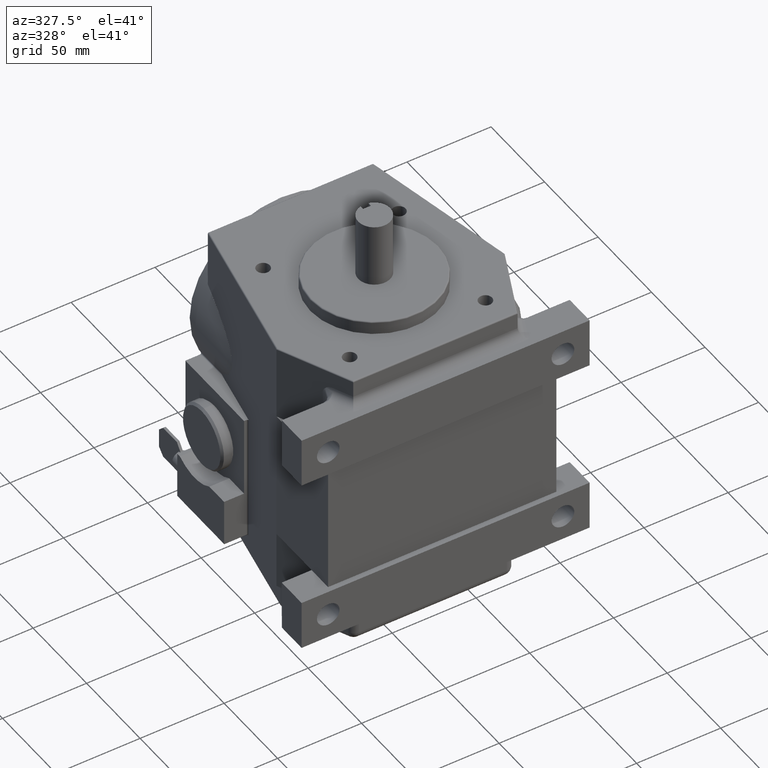
[diagram: clean part render]
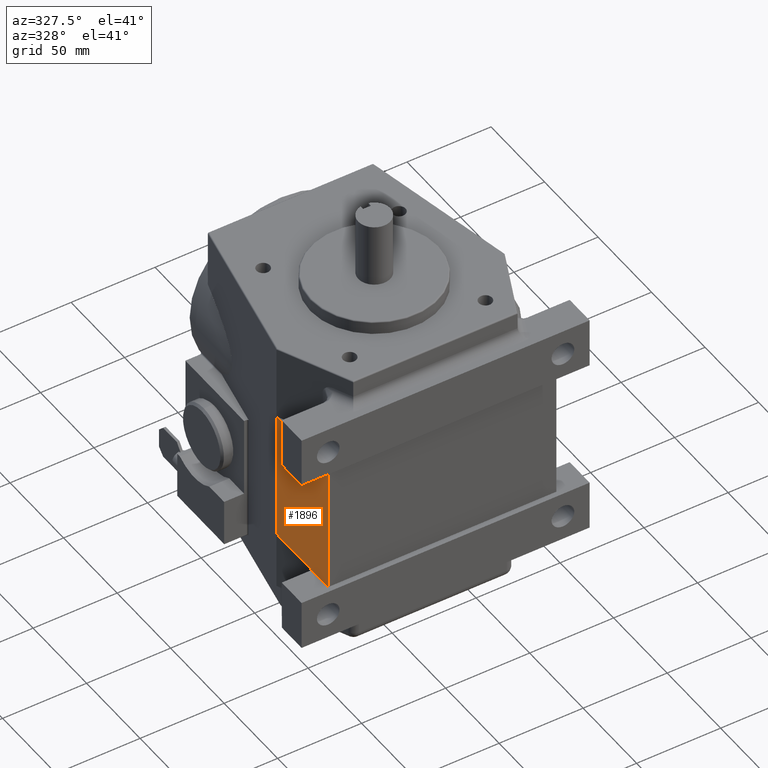
[diagram: same view with one face highlighted and labeled with its STEP entity id]
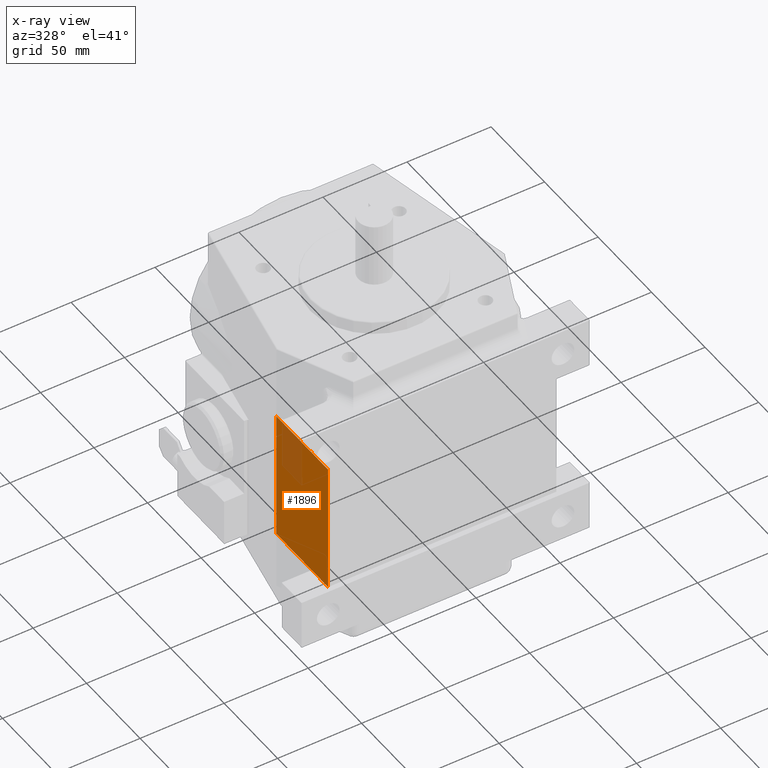
[diagram: x-ray of the same camera — body ghosted, the highlighted face saturated]
A machine part, auxiliary view. The second image highlights one B-rep face of the part: STEP entity #1896.
The next image is the same camera in x-ray: the body ghosted, the highlighted face saturated — about 14% of this face is hidden behind the body in this view.
In plain terms, the highlighted planar face has unit normal (1, 0, -0).
Its self-contained STEP definition (entity closure, byte-faithful):
#220 = VERTEX_POINT ( 'NONE', #1115 ) ;
#239 = VERTEX_POINT ( 'NONE', #1134 ) ;
#240 = VERTEX_POINT ( 'NONE', #1135 ) ;
#264 = VERTEX_POINT ( 'NONE', #1155 ) ;
#271 = VERTEX_POINT ( 'NONE', #1162 ) ;
#272 = VERTEX_POINT ( 'NONE', #1163 ) ;
#277 = VERTEX_POINT ( 'NONE', #1168 ) ;
#278 = VERTEX_POINT ( 'NONE', #1169 ) ;
#289 = VERTEX_POINT ( 'NONE', #1180 ) ;
#294 = VERTEX_POINT ( 'NONE', #1185 ) ;
#588 = EDGE_CURVE ( 'NONE', #239, #240, #4099, .T. ) ;
#612 = EDGE_CURVE ( 'NONE', #289, #294, #4155, .T. ) ;
#621 = EDGE_CURVE ( 'NONE', #278, #277, #4146, .T. ) ;
#633 = EDGE_CURVE ( 'NONE', #272, #271, #4196, .T. ) ;
#647 = EDGE_CURVE ( 'NONE', #271, #277, #4221, .T. ) ;
#662 = EDGE_CURVE ( 'NONE', #289, #272, #4247, .T. ) ;
#663 = EDGE_CURVE ( 'NONE', #264, #239, #4230, .T. ) ;
#664 = EDGE_CURVE ( 'NONE', #220, #264, #4248, .T. ) ;
#666 = EDGE_CURVE ( 'NONE', #278, #240, #4252, .T. ) ;
#667 = EDGE_CURVE ( 'NONE', #220, #294, #4246, .T. ) ;
#1115 = CARTESIAN_POINT ( 'NONE',  ( -2.675000000000000300, 2.025000000000000400, -1.537499999999999600 ) ) ;
#1134 = CARTESIAN_POINT ( 'NONE',  ( -2.674999999999999400, 0.7499999999999997800, 1.537500000000000500 ) ) ;
#1135 = CARTESIAN_POINT ( 'NONE',  ( -2.674999999999999400, 0.7500000000000001100, 1.567500000000000100 ) ) ;
#1155 = CARTESIAN_POINT ( 'NONE',  ( -2.674999999999999400, 2.024999999999999900, 1.537500000000000500 ) ) ;
#1162 = CARTESIAN_POINT ( 'NONE',  ( -2.674999999999999800, 0.1249999999999997900, -1.537499999999999600 ) ) ;
#1163 = CARTESIAN_POINT ( 'NONE',  ( -2.674999999999999800, 0.7200000000000000800, -1.537499999999999600 ) ) ;
#1168 = CARTESIAN_POINT ( 'NONE',  ( -2.674999999999999400, 0.1249999999999997900, 1.537500000000000500 ) ) ;
#1169 = CARTESIAN_POINT ( 'NONE',  ( -2.674999999999999400, 0.7199999999999999700, 1.537500000000000500 ) ) ;
#1180 = CARTESIAN_POINT ( 'NONE',  ( -2.674999999999999800, 0.7500000000000001100, -1.567499999999999700 ) ) ;
#1185 = CARTESIAN_POINT ( 'NONE',  ( -2.674999999999999800, 0.7500000000000001100, -1.537499999999999600 ) ) ;
#1298 = EDGE_LOOP ( 'NONE', ( #2120, #2121, #2122, #2123, #2124, #2125, #2126, #2127, #2128, #2129 ) ) ;
#1896 = ADVANCED_FACE ( 'NONE', ( #5660 ), #6541, .F. ) ;
#2120 = ORIENTED_EDGE ( 'NONE', *, *, #667, .T. ) ;
#2121 = ORIENTED_EDGE ( 'NONE', *, *, #612, .F. ) ;
#2122 = ORIENTED_EDGE ( 'NONE', *, *, #662, .T. ) ;
#2123 = ORIENTED_EDGE ( 'NONE', *, *, #633, .T. ) ;
#2124 = ORIENTED_EDGE ( 'NONE', *, *, #647, .T. ) ;
#2125 = ORIENTED_EDGE ( 'NONE', *, *, #621, .F. ) ;
#2126 = ORIENTED_EDGE ( 'NONE', *, *, #666, .T. ) ;
#2127 = ORIENTED_EDGE ( 'NONE', *, *, #588, .F. ) ;
#2128 = ORIENTED_EDGE ( 'NONE', *, *, #663, .F. ) ;
#2129 = ORIENTED_EDGE ( 'NONE', *, *, #664, .F. ) ;
#4093 = VECTOR ( 'NONE', #5078, 39.37007874015748100 ) ;
#4099 = LINE ( 'NONE', #5077, #4093 ) ;
#4146 = LINE ( 'NONE', #5132, #4173 ) ;
#4155 = LINE ( 'NONE', #5127, #4156 ) ;
#4156 = VECTOR ( 'NONE', #5128, 39.37007874015748100 ) ;
#4173 = VECTOR ( 'NONE', #5129, 39.37007874015748100 ) ;
#4196 = LINE ( 'NONE', #5228, #4197 ) ;
#4197 = VECTOR ( 'NONE', #5229, 39.37007874015748100 ) ;
#4221 = LINE ( 'NONE', #5258, #4222 ) ;
#4222 = VECTOR ( 'NONE', #5259, 39.37007874015748100 ) ;
#4230 = LINE ( 'NONE', #5296, #4244 ) ;
#4244 = VECTOR ( 'NONE', #5297, 39.37007874015748100 ) ;
#4246 = LINE ( 'NONE', #5307, #4250 ) ;
#4247 = CIRCLE ( 'NONE', #4420, 0.02999999999999995400 ) ;
#4248 = LINE ( 'NONE', #5299, #4249 ) ;
#4249 = VECTOR ( 'NONE', #5300, 39.37007874015748100 ) ;
#4250 = VECTOR ( 'NONE', #5308, 39.37007874015748100 ) ;
#4252 = CIRCLE ( 'NONE', #4421, 0.02999999999999995400 ) ;
#4420 = AXIS2_PLACEMENT_3D ( 'NONE', #5289, #5294, #5295 ) ;
#4421 = AXIS2_PLACEMENT_3D ( 'NONE', #5301, #5305, #5306 ) ;
#4466 = AXIS2_PLACEMENT_3D ( 'NONE', #6536, #6546, #6547 ) ;
#5077 = CARTESIAN_POINT ( 'NONE',  ( -2.674999999999999400, 0.7500000000000001100, 1.537500000000000100 ) ) ;
#5078 = DIRECTION ( 'NONE',  ( 6.427877632151208200E-017, 0.0000000000000000000, 1.000000000000000000 ) ) ;
#5127 = CARTESIAN_POINT ( 'NONE',  ( -2.674999999999999800, 0.7500000000000001100, -3.624571577257242000 ) ) ;
#5128 = DIRECTION ( 'NONE',  ( 6.427877632151208200E-017, 0.0000000000000000000, 1.000000000000000000 ) ) ;
#5129 = DIRECTION ( 'NONE',  ( 0.0000000000000000000, -1.000000000000000000, -0.0000000000000000000 ) ) ;
#5132 = CARTESIAN_POINT ( 'NONE',  ( -2.674999999999999400, 0.1249999999999997900, 1.537500000000000500 ) ) ;
#5228 = CARTESIAN_POINT ( 'NONE',  ( -2.674999999999999800, 0.1249999999999997900, -1.537499999999999600 ) ) ;
#5229 = DIRECTION ( 'NONE',  ( 0.0000000000000000000, -1.000000000000000000, 0.0000000000000000000 ) ) ;
#5258 = CARTESIAN_POINT ( 'NONE',  ( -2.674999999999999800, 0.1249999999999997900, -3.624571577257242000 ) ) ;
#5259 = DIRECTION ( 'NONE',  ( 6.427877632151208200E-017, 0.0000000000000000000, 1.000000000000000000 ) ) ;
#5289 = CARTESIAN_POINT ( 'NONE',  ( -2.674999999999999800, 0.7200000000000000800, -1.567499999999999700 ) ) ;
#5294 = DIRECTION ( 'NONE',  ( 1.000000000000000000, 0.0000000000000000000, -6.427877632151208200E-017 ) ) ;
#5295 = DIRECTION ( 'NONE',  ( 0.0000000000000000000, 0.0000000000000000000, -1.000000000000000000 ) ) ;
#5296 = CARTESIAN_POINT ( 'NONE',  ( -2.674999999999999400, 0.1249999999999997900, 1.537500000000000500 ) ) ;
#5297 = DIRECTION ( 'NONE',  ( 0.0000000000000000000, -1.000000000000000000, -0.0000000000000000000 ) ) ;
#5299 = CARTESIAN_POINT ( 'NONE',  ( -2.674999999999999800, 2.024999999999999900, -3.624571577257242000 ) ) ;
#5300 = DIRECTION ( 'NONE',  ( 6.427877632151208200E-017, 0.0000000000000000000, 1.000000000000000000 ) ) ;
#5301 = CARTESIAN_POINT ( 'NONE',  ( -2.674999999999999400, 0.7200000000000000800, 1.567500000000000100 ) ) ;
#5305 = DIRECTION ( 'NONE',  ( 1.000000000000000000, 0.0000000000000000000, -6.427877632151208200E-017 ) ) ;
#5306 = DIRECTION ( 'NONE',  ( 0.0000000000000000000, 0.0000000000000000000, -1.000000000000000000 ) ) ;
#5307 = CARTESIAN_POINT ( 'NONE',  ( -2.674999999999999800, 0.1249999999999997900, -1.537499999999999600 ) ) ;
#5308 = DIRECTION ( 'NONE',  ( 0.0000000000000000000, -1.000000000000000000, 0.0000000000000000000 ) ) ;
#5660 = FACE_OUTER_BOUND ( 'NONE', #1298, .T. ) ;
#6536 = CARTESIAN_POINT ( 'NONE',  ( -2.674999999999999800, 0.1249999999999997900, -3.624571577257242000 ) ) ;
#6541 = PLANE ( 'NONE',  #4466 ) ;
#6546 = DIRECTION ( 'NONE',  ( 1.000000000000000000, 0.0000000000000000000, -6.427877632151208200E-017 ) ) ;
#6547 = DIRECTION ( 'NONE',  ( 6.427877632151208200E-017, 0.0000000000000000000, 1.000000000000000000 ) ) ;